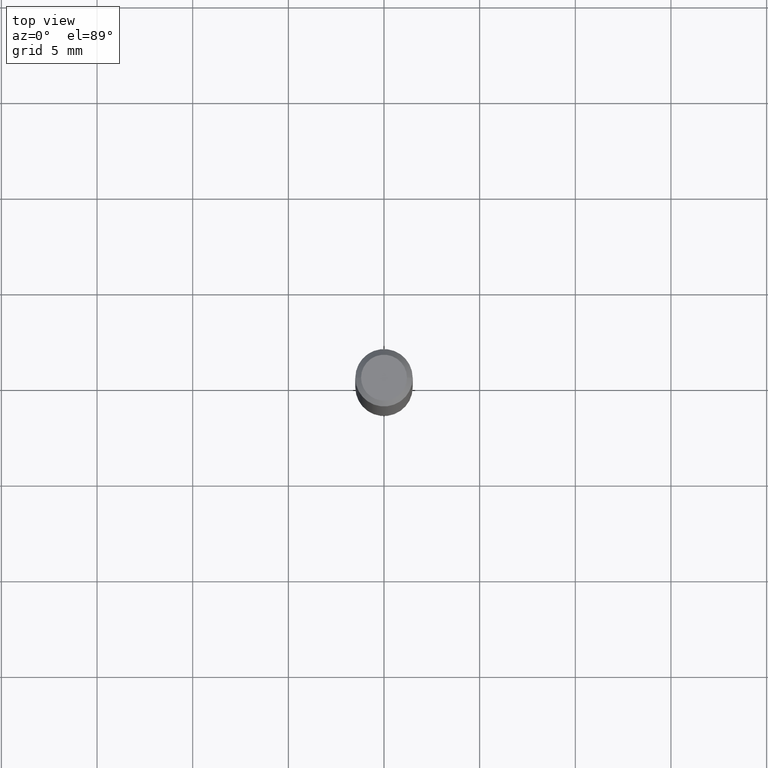
[diagram: clean part render]
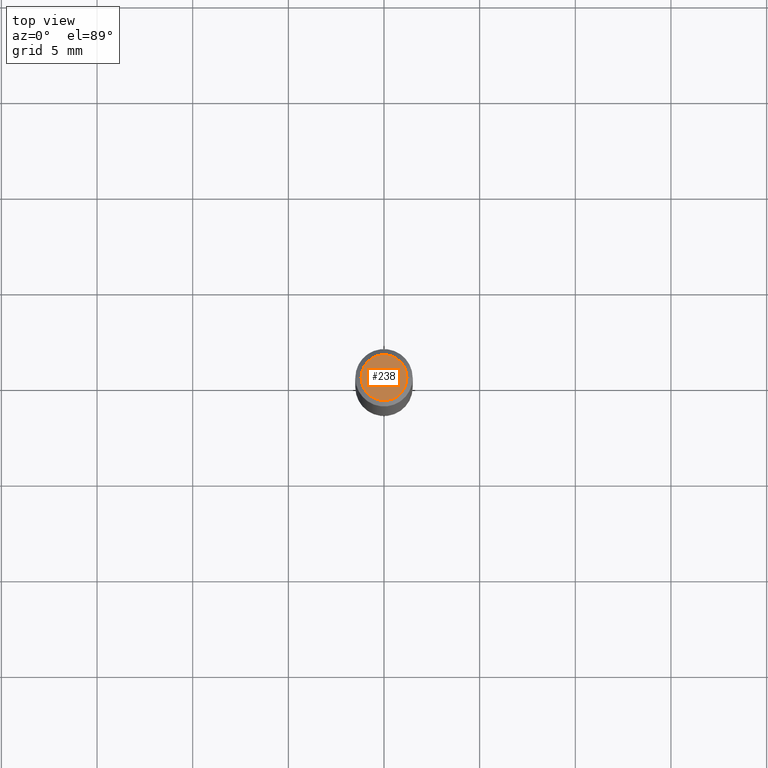
[diagram: same view with one face highlighted and labeled with its STEP entity id]
A machine part, top view. The second image highlights one B-rep face of the part: STEP entity #238.
In plain terms, the highlighted planar face has unit normal (0, -0, -1).
Its self-contained STEP definition (entity closure, byte-faithful):
#22 = AXIS2_PLACEMENT_3D ( 'NONE', #280, #353, #430 ) ;
#122 = ORIENTED_EDGE ( 'NONE', *, *, #275, .T. ) ;
#153 = PLANE ( 'NONE',  #474 ) ;
#175 = CARTESIAN_POINT ( 'NONE',  ( -0.04724000000000000421, 3.504923541997677355E-16, -3.380025165670481712E-19 ) ) ;
#179 = DIRECTION ( 'NONE',  ( 1.000000000000000000, -6.982962677686266711E-15, 4.876185090822587894E-29 ) ) ;
#225 = FACE_OUTER_BOUND ( 'NONE', #433, .T. ) ;
#231 = DIRECTION ( 'NONE',  ( 2.438088387897960049E-29, -3.491481338843145188E-15, -1.000000000000000000 ) ) ;
#238 = ADVANCED_FACE ( 'NONE', ( #225 ), #153, .F. ) ;
#256 = VERTEX_POINT ( 'NONE', #463 ) ;
#275 = EDGE_CURVE ( 'NONE', #256, #473, #374, .T. ) ;
#280 = CARTESIAN_POINT ( 'NONE',  ( 8.265746106709734507E-48, -1.180129479067563789E-33, -3.380025165646692144E-19 ) ) ;
#302 = AXIS2_PLACEMENT_3D ( 'NONE', #327, #363, #179 ) ;
#304 = ORIENTED_EDGE ( 'NONE', *, *, #472, .T. ) ;
#327 = CARTESIAN_POINT ( 'NONE',  ( 8.265746106709734507E-48, -1.180129479067563789E-33, -3.380025165646692144E-19 ) ) ;
#353 = DIRECTION ( 'NONE',  ( -2.445468806185136597E-29, 3.491481338843145583E-15, 1.000000000000000000 ) ) ;
#363 = DIRECTION ( 'NONE',  ( -2.445468806185136597E-29, 3.491481338843145583E-15, 1.000000000000000000 ) ) ;
#373 = CIRCLE ( 'NONE', #302, 0.04724000000000000421 ) ;
#374 = CIRCLE ( 'NONE', #22, 0.04724000000000000421 ) ;
#385 = DIRECTION ( 'NONE',  ( -1.000000000000000000, 6.982962677686265922E-15, -4.876176775795935793E-29 ) ) ;
#422 = CARTESIAN_POINT ( 'NONE',  ( 4.132873053354867254E-48, -5.900647395337818946E-34, -1.690012582823346072E-19 ) ) ;
#430 = DIRECTION ( 'NONE',  ( 1.000000000000000000, -6.982962677686266711E-15, 4.876185090822587894E-29 ) ) ;
#433 = EDGE_LOOP ( 'NONE', ( #304, #122 ) ) ;
#463 = CARTESIAN_POINT ( 'NONE',  ( 0.04724000000000000421, -3.852183633974369345E-16, -3.380025165621689721E-19 ) ) ;
#472 = EDGE_CURVE ( 'NONE', #473, #256, #373, .T. ) ;
#473 = VERTEX_POINT ( 'NONE', #175 ) ;
#474 = AXIS2_PLACEMENT_3D ( 'NONE', #422, #231, #385 ) ;